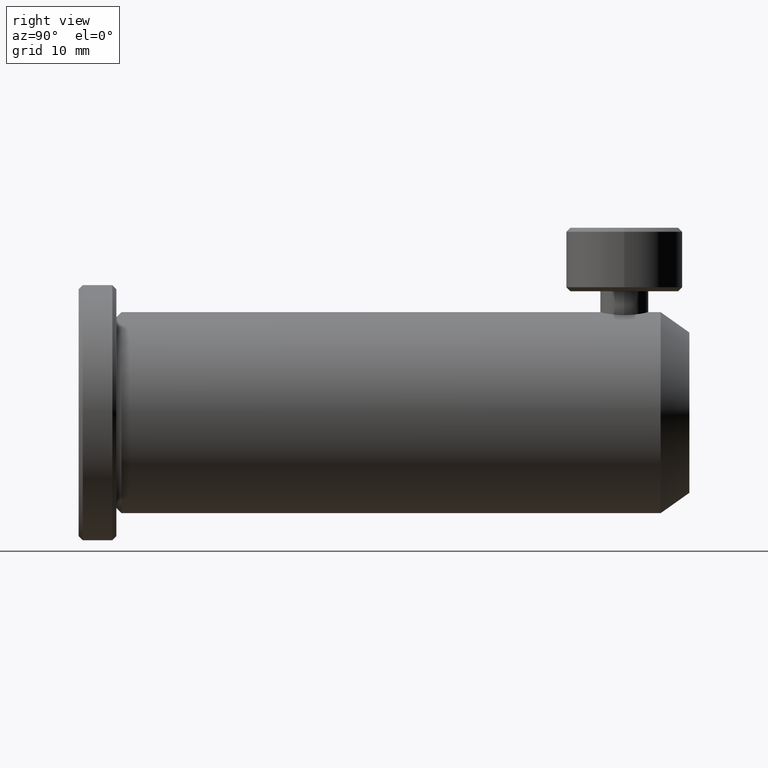
[diagram: clean part render]
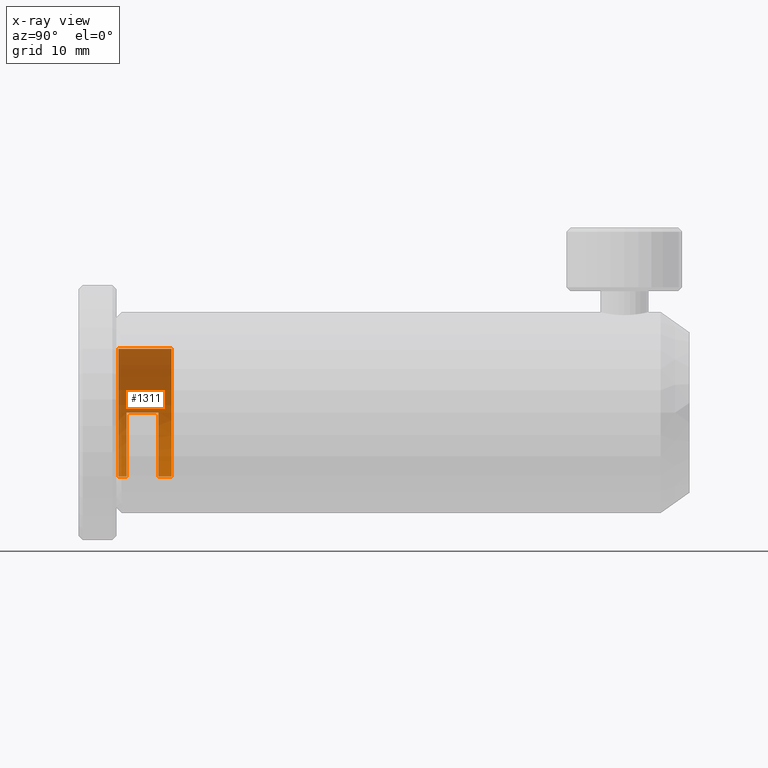
[diagram: x-ray — body ghosted, one internal face saturated and labeled with its STEP entity id]
A machine part, right view, then the same camera in x-ray: the body is ghosted and one INTERNAL B-rep face — a face not visible from any outside direction — is saturated and labeled: STEP entity #1311.
In plain terms, the highlighted cylindrical surface (partial cylindrical patch) has radius 7.9375 mm, axis along (-0, 1, -0).
Its self-contained STEP definition (entity closure, byte-faithful):
#45 = CARTESIAN_POINT ( 'NONE',  ( -18.36051706045270000, -9.641795917809309600, 4.016546295019217900 ) ) ;
#68 = CARTESIAN_POINT ( 'NONE',  ( -24.11097407575043800, -9.641817909465073600, 8.753403349700374000 ) ) ;
#95 = CARTESIAN_POINT ( 'NONE',  ( -16.77690416192938400, -14.59483156452664700, 19.78349999999993300 ) ) ;
#128 = EDGE_CURVE ( 'NONE', #158, #2944, #2069, .T. ) ;
#158 = VERTEX_POINT ( 'NONE', #210 ) ;
#171 = EDGE_CURVE ( 'NONE', #2944, #1987, #2391, .T. ) ;
#187 = DIRECTION ( 'NONE',  ( -0.0000000000000000000, 1.000000000000000000, -0.0000000000000000000 ) ) ;
#210 = CARTESIAN_POINT ( 'NONE',  ( -16.77690416192938400, -14.59483156452664700, 3.908500000000066300 ) ) ;
#221 = VERTEX_POINT ( 'NONE', #1982 ) ;
#258 = CARTESIAN_POINT ( 'NONE',  ( -16.77690416192938400, -7.990831564526651200, 11.84600000000000000 ) ) ;
#287 = DIRECTION ( 'NONE',  ( -0.0000000000000000000, 1.000000000000000000, -0.0000000000000000000 ) ) ;
#334 = CARTESIAN_POINT ( 'NONE',  ( -20.06749764501243400, -9.641798948870517800, 4.567251640193409100 ) ) ;
#392 = EDGE_CURVE ( 'NONE', #3303, #1214, #1843, .T. ) ;
#474 = CYLINDRICAL_SURFACE ( 'NONE', #1758, 7.937499999999932500 ) ;
#478 = DIRECTION ( 'NONE',  ( -0.0000000000000000000, 1.000000000000000000, -0.0000000000000000000 ) ) ;
#564 = ORIENTED_EDGE ( 'NONE', *, *, #2653, .F. ) ;
#570 = CARTESIAN_POINT ( 'NONE',  ( -24.71440416190851500, -9.641831564526649200, 11.84598182827097400 ) ) ;
#615 = CARTESIAN_POINT ( 'NONE',  ( -16.77690465237445100, -9.641799069448357100, 3.908500000000082200 ) ) ;
#655 = CARTESIAN_POINT ( 'NONE',  ( -24.50780756226441400, -13.57884049867822000, 9.768356392796640400 ) ) ;
#658 = VECTOR ( 'NONE', #1003, 1000.000000000000000 ) ;
#697 = EDGE_CURVE ( 'NONE', #158, #2251, #744, .T. ) ;
#729 = DIRECTION ( 'NONE',  ( 0.0000000000000000000, 0.0000000000000000000, 1.000000000000000000 ) ) ;
#744 = LINE ( 'NONE', #773, #658 ) ;
#773 = CARTESIAN_POINT ( 'NONE',  ( -16.77690416192938400, 10.85402768764679000, 3.908500000000066300 ) ) ;
#857 = CARTESIAN_POINT ( 'NONE',  ( -23.57251977138291100, -9.641813358169830700, 7.702046776336532100 ) ) ;
#882 = CARTESIAN_POINT ( 'NONE',  ( -16.77690465237445100, -9.641799069448357100, 3.908500000000082200 ) ) ;
#887 = AXIS2_PLACEMENT_3D ( 'NONE', #2387, #478, #729 ) ;
#899 = CARTESIAN_POINT ( 'NONE',  ( -18.85452355790969700, -13.57885955820154000, 4.115083294923447700 ) ) ;
#913 = CARTESIAN_POINT ( 'NONE',  ( -21.65486010448266900, -13.57885538893081900, 5.498631395765011500 ) ) ;
#1003 = DIRECTION ( 'NONE',  ( -0.0000000000000000000, 1.000000000000000000, -0.0000000000000000000 ) ) ;
#1129 = CARTESIAN_POINT ( 'NONE',  ( -16.77690416192938400, 10.85402768764679000, 3.908500000000066300 ) ) ;
#1131 = ORIENTED_EDGE ( 'NONE', *, *, #3000, .T. ) ;
#1179 = B_SPLINE_CURVE_WITH_KNOTS ( 'NONE', 3,
 ( #615, #2823, #45, #334, #2250, #2227, #3359, #2526, #857, #68, #3108, #2262, #3094, #570 ),
 .UNSPECIFIED., .F., .F.,
 ( 4, 2, 2, 2, 2, 2, 4 ),
 ( 0.5002174648131161300, 0.6251630986098371000, 0.7501087324065580700, 0.8125815493049185500, 0.8750543662032790300, 0.9375271831016395200, 1.000000000000000000 ),
 .UNSPECIFIED. ) ;
#1194 = ORIENTED_EDGE ( 'NONE', *, *, #697, .T. ) ;
#1214 = VERTEX_POINT ( 'NONE', #2597 ) ;
#1217 = CARTESIAN_POINT ( 'NONE',  ( -16.77690416192945500, -13.57886015376989700, 3.908496094165017100 ) ) ;
#1311 = ADVANCED_FACE ( 'NONE', ( #1406 ), #474, .F. ) ;
#1406 = FACE_OUTER_BOUND ( 'NONE', #3096, .T. ) ;
#1419 = DIRECTION ( 'NONE',  ( 0.0000000000000000000, -1.000000000000000000, 0.0000000000000000000 ) ) ;
#1444 = CARTESIAN_POINT ( 'NONE',  ( -24.71440416190851500, -11.61033156452665300, 11.84598182827097200 ) ) ;
#1476 = EDGE_CURVE ( 'NONE', #3460, #3303, #1179, .T. ) ;
#1511 = CARTESIAN_POINT ( 'NONE',  ( -17.81591825903160100, -13.57886015381163600, 3.908492188329974600 ) ) ;
#1638 = DIRECTION ( 'NONE',  ( -0.0000000000000000000, 1.000000000000000000, -0.0000000000000000000 ) ) ;
#1650 = ORIENTED_EDGE ( 'NONE', *, *, #171, .F. ) ;
#1663 = CARTESIAN_POINT ( 'NONE',  ( -16.77690416192938400, 10.85402768764679000, 19.78349999999993300 ) ) ;
#1728 = ORIENTED_EDGE ( 'NONE', *, *, #392, .F. ) ;
#1756 = CARTESIAN_POINT ( 'NONE',  ( -20.77437216183517400, -13.57885717576112900, 4.910309337041209900 ) ) ;
#1758 = AXIS2_PLACEMENT_3D ( 'NONE', #3289, #187, #1895 ) ;
#1817 = ORIENTED_EDGE ( 'NONE', *, *, #2632, .T. ) ;
#1843 = LINE ( 'NONE', #1444, #2933 ) ;
#1862 = VECTOR ( 'NONE', #287, 1000.000000000000000 ) ;
#1895 = DIRECTION ( 'NONE',  ( 0.0000000000000000000, 0.0000000000000000000, 1.000000000000000000 ) ) ;
#1901 = CIRCLE ( 'NONE', #3376, 7.937499999999932500 ) ;
#1982 = CARTESIAN_POINT ( 'NONE',  ( -16.77690416192938400, -7.990831564526651200, 3.908500000000066300 ) ) ;
#1987 = VERTEX_POINT ( 'NONE', #3444 ) ;
#2066 = CARTESIAN_POINT ( 'NONE',  ( -23.12425093719027200, -13.57885062404999000, 6.968018864512801600 ) ) ;
#2069 = CIRCLE ( 'NONE', #887, 7.937499999999932500 ) ;
#2227 = CARTESIAN_POINT ( 'NONE',  ( -22.15963035927529400, -9.641805773461667800, 5.989373879650159400 ) ) ;
#2248 = CARTESIAN_POINT ( 'NONE',  ( -24.71440416190851500, -9.641831564526649200, 11.84598182827097400 ) ) ;
#2250 = CARTESIAN_POINT ( 'NONE',  ( -20.94571358167017300, -9.641801223342280700, 5.011930882989041400 ) ) ;
#2251 = VERTEX_POINT ( 'NONE', #2627 ) ;
#2262 = CARTESIAN_POINT ( 'NONE',  ( -24.63137267307513800, -9.641825685084381100, 10.54089006473567200 ) ) ;
#2387 = CARTESIAN_POINT ( 'NONE',  ( -16.77690416192938400, -14.59483156452664700, 11.84600000000000000 ) ) ;
#2391 = LINE ( 'NONE', #1663, #3479 ) ;
#2526 = CARTESIAN_POINT ( 'NONE',  ( -23.25278794946443000, -9.641811272257500700, 7.222695970971402700 ) ) ;
#2580 = CARTESIAN_POINT ( 'NONE',  ( -24.71440178323126700, -13.57883632940748700, 10.80696398883896100 ) ) ;
#2584 = B_SPLINE_CURVE_WITH_KNOTS ( 'NONE', 3,
 ( #2613, #2580, #655, #3180, #2066, #913, #1756, #899, #1511, #1217 ),
 .UNSPECIFIED., .F., .F.,
 ( 4, 2, 2, 2, 4 ),
 ( 0.0000000000000000000, 0.1250000001448587900, 0.2500000002897175800, 0.3750000004345763700, 0.5000000005794351700 ),
 .UNSPECIFIED. ) ;
#2597 = CARTESIAN_POINT ( 'NONE',  ( -24.71440416190851900, -13.57883156452665200, 11.84598182827097200 ) ) ;
#2613 = CARTESIAN_POINT ( 'NONE',  ( -24.71440416190851900, -13.57883156452665200, 11.84598182827097200 ) ) ;
#2616 = ORIENTED_EDGE ( 'NONE', *, *, #128, .F. ) ;
#2627 = CARTESIAN_POINT ( 'NONE',  ( -16.77690416192945500, -13.57886015376989700, 3.908496094165017100 ) ) ;
#2632 = EDGE_CURVE ( 'NONE', #3460, #221, #3158, .T. ) ;
#2653 = EDGE_CURVE ( 'NONE', #1214, #2251, #2584, .T. ) ;
#2806 = DIRECTION ( 'NONE',  ( 0.0000000000000000000, 0.0000000000000000000, 1.000000000000000000 ) ) ;
#2823 = CARTESIAN_POINT ( 'NONE',  ( -17.53150731147431100, -9.641795161219860700, 3.908500048977658500 ) ) ;
#2933 = VECTOR ( 'NONE', #1419, 1000.000000000000000 ) ;
#2944 = VERTEX_POINT ( 'NONE', #95 ) ;
#3000 = EDGE_CURVE ( 'NONE', #221, #1987, #1901, .T. ) ;
#3094 = CARTESIAN_POINT ( 'NONE',  ( -24.71440264701077200, -9.641828529937869900, 11.18426708954812200 ) ) ;
#3096 = EDGE_LOOP ( 'NONE', ( #2616, #1194, #564, #1728, #3574, #1817, #1131, #1650 ) ) ;
#3108 = CARTESIAN_POINT ( 'NONE',  ( -24.32958128532486300, -9.641820374847981200, 9.325472279408856500 ) ) ;
#3158 = LINE ( 'NONE', #1129, #1862 ) ;
#3180 = CARTESIAN_POINT ( 'NONE',  ( -23.71257569279444200, -13.57884764599946500, 7.848506151970828300 ) ) ;
#3289 = CARTESIAN_POINT ( 'NONE',  ( -16.77690416192938400, 10.85402768764679000, 11.84600000000000000 ) ) ;
#3303 = VERTEX_POINT ( 'NONE', #2248 ) ;
#3316 = DIRECTION ( 'NONE',  ( -0.0000000000000000000, 1.000000000000000000, -0.0000000000000000000 ) ) ;
#3359 = CARTESIAN_POINT ( 'NONE',  ( -22.54630547731287400, -9.641807479903418400, 6.366399506067258700 ) ) ;
#3376 = AXIS2_PLACEMENT_3D ( 'NONE', #258, #3316, #2806 ) ;
#3444 = CARTESIAN_POINT ( 'NONE',  ( -16.77690416192938400, -7.990831564526651200, 19.78349999999993300 ) ) ;
#3460 = VERTEX_POINT ( 'NONE', #882 ) ;
#3479 = VECTOR ( 'NONE', #1638, 1000.000000000000000 ) ;
#3574 = ORIENTED_EDGE ( 'NONE', *, *, #1476, .F. ) ;